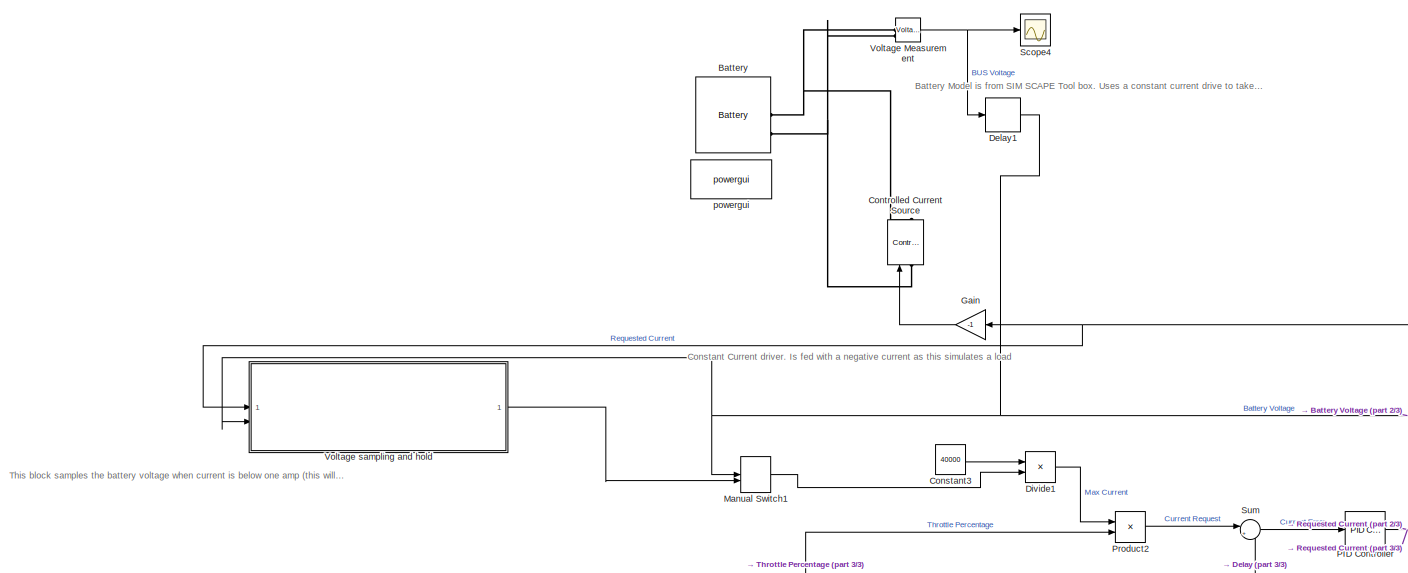
[diagram: root canvas - part 1/3, full width, middle band]
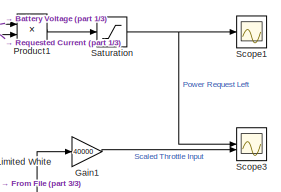
[diagram: root canvas - part 2/3, bottom right region]
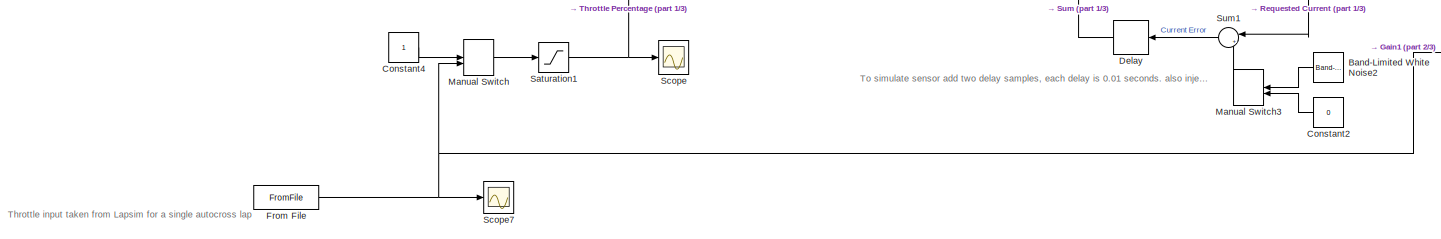
[diagram: root canvas - part 3/3, full width, bottom band]
MODEL slx_4801fc5ce062
KIND model
CONFIG AbsTol = auto
CONFIG EnableMultiTasking = off
CONFIG FixedStep = auto
CONFIG MaxStep = auto
CONFIG MinStep = auto
CONFIG RelTol = 1e-3
CONFIG SampleTimeConstraint = Unconstrained
CONFIG SolverName = VariableStepAuto
CONFIG StartTime = 0.0
CONFIG StopTime = 97.91
BLOCK [Reference] Band-Limited White Noise2  REF=simulink/Sources/Band-Limited
White Noise
  SourceBlock = simulink/Sources/Band-Limited\nWhite Noise
  SourceType = Band-Limited White Noise.
BLOCK [Reference] Battery  REF=spsBatteryLib/Battery
  LibrarySourceBlock = sps_lib/Sources/Battery
  SourceBlock = spsBatteryLib/Battery
  SourceType = Battery
BLOCK [Constant] Constant2
  Value = 0
BLOCK [Constant] Constant3
  Value = 40000
BLOCK [Constant] Constant4
BLOCK [Reference] Controlled Current Source  REF=spsControlledCurrentSourceLib/Controlled Current Source
  LibrarySourceBlock = sps_lib/Sources/Controlled Current Source
  SourceBlock = spsControlledCurrentSourceLib/Controlled Current Source
  SourceType = Controlled Current Source
BLOCK [Delay] Delay
  InputPortMap = u0
BLOCK [Delay] Delay1
  DelayLength = 1
  InitialCondition = 600
  InputPortMap = u0
BLOCK [Product] Divide1
  Inputs = */
BLOCK [FromFile] From File
  FileName = data.mat
  SampleTime = 0
BLOCK [Gain] Gain
  Gain = -1
BLOCK [Gain] Gain1
  Gain = 40000
BLOCK [ManualSwitch] Manual Switch
  CurrentSetting = 0
BLOCK [ManualSwitch] Manual Switch1
  CurrentSetting = 0
BLOCK [ManualSwitch] Manual Switch3
BLOCK [Reference] PID Controller  REF=slpidlib/PID Controller
  LibrarySourceBlock = simulink/Continuous/PID Controller
  SourceBlock = slpidlib/PID Controller
  SourceType = PID 1dof
BLOCK [Product] Product1
BLOCK [Product] Product2
BLOCK [Saturate] Saturation
  LowerLimit = 0
  UpperLimit = inf
BLOCK [Saturate] Saturation1
  LowerLimit = 0
  UpperLimit = inf
BLOCK [Scope] Scope
  Floating = off
  NumInputPorts = 1
  ScopeSpecificationString = Simulink.scopes.TimeScopeBlockCfg('CurrentConfiguration', extmgr.ConfigurationSet(extmgr.Configuration('Core','General UI',true),extmgr.Configuration('Core','Source UI',true),extmgr.Configuration('Sources','WiredSimulink',true),extmgr.Configuration('Visuals','Time Domain',true,'SerializedDisplays',{struct('MinYLimReal','-0.12499','MaxYLimReal','1.12491','YLabelReal','','MinYLimMag','0.00000','MaxY...<+1496ch>
BLOCK [Scope] Scope1
  Floating = off
  NumInputPorts = 1
  ScopeSpecificationString = Simulink.scopes.TimeScopeBlockCfg('CurrentConfiguration', extmgr.ConfigurationSet(extmgr.Configuration('Core','General UI',true),extmgr.Configuration('Core','Source UI',true),extmgr.Configuration('Sources','WiredSimulink',true,'DataLoggingVariableName','ScopeData1'),extmgr.Configuration('Visuals','Time Domain',true,'SerializedDisplays',{struct('MinYLimReal','-5106.65646','MaxYLimReal','45959.90815...<+1571ch>
BLOCK [Scope] Scope3
  Floating = off
  NumInputPorts = 2
  ScopeSpecificationString = Simulink.scopes.TimeScopeBlockCfg('CurrentConfiguration', extmgr.ConfigurationSet(extmgr.Configuration('Core','General UI',true),extmgr.Configuration('Core','Source UI',true),extmgr.Configuration('Sources','WiredSimulink',true,'DataLoggingVariableName','ScopeData3'),extmgr.Configuration('Visuals','Time Domain',true,'SerializedDisplays',{struct('MinYLimReal','-1117.0811','MaxYLimReal','42138.31491'...<+1591ch>
BLOCK [Scope] Scope4
  Floating = off
  NumInputPorts = 1
  ScopeSpecificationString = Simulink.scopes.TimeScopeBlockCfg('CurrentConfiguration', extmgr.ConfigurationSet(extmgr.Configuration('Core','General UI',true),extmgr.Configuration('Core','Source UI',true),extmgr.Configuration('Sources','WiredSimulink',true,'DataLoggingVariableName','ScopeData1'),extmgr.Configuration('Visuals','Time Domain',true,'SerializedDisplays',{struct('MinYLimReal','593.71212','MaxYLimReal','595.79771','Y...<+1506ch>
BLOCK [Scope] Scope7
  Floating = off
  NumInputPorts = 1
  ScopeSpecificationString = Simulink.scopes.TimeScopeBlockCfg('CurrentConfiguration', extmgr.ConfigurationSet(extmgr.Configuration('Core','General UI',true),extmgr.Configuration('Core','Source UI',true),extmgr.Configuration('Sources','WiredSimulink',true,'DataLoggingVariableName','ScopeData1'),extmgr.Configuration('Visuals','Time Domain',true,'SerializedDisplays',{struct('MinYLimReal','-0.125','MaxYLimReal','1.125','YLabelRe...<+1445ch>
BLOCK [Sum] Sum
  Inputs = |+-
BLOCK [Sum] Sum1
  Inputs = |++
BLOCK [Reference] Voltage Measurement  REF=spsVoltageMeasurementLib/Voltage Measurement
  LibrarySourceBlock = sps_lib/Sensors and Measurements/Voltage Measurement
  SourceBlock = spsVoltageMeasurementLib/Voltage Measurement
  SourceType = Voltage Measurement
  UserDataPersistent = on
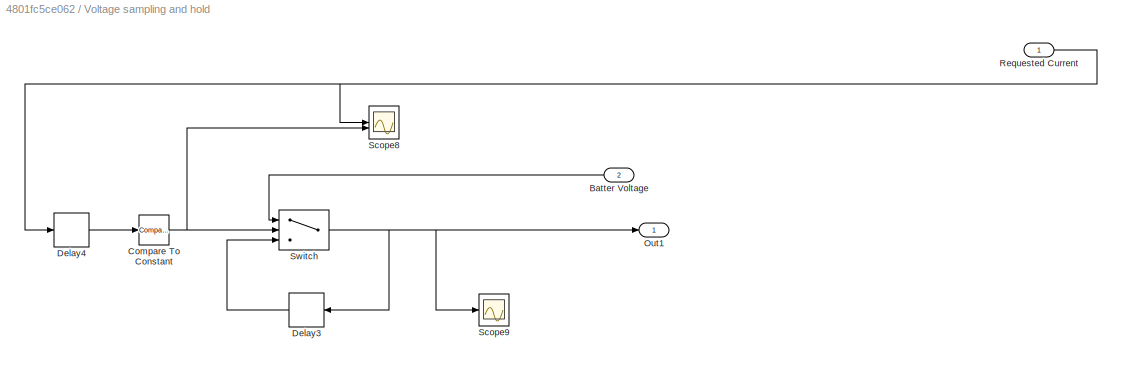
BLOCK [SubSystem] Voltage sampling  and hold
BLOCK [Inport] Voltage sampling  and hold/Batter Voltage
  Port = 2
BLOCK [Reference] Voltage sampling  and hold/Compare To Constant  REF=simulink/Logic and Bit
Operations/Compare
To Constant
  SourceBlock = simulink/Logic and Bit\nOperations/Compare\nTo Constant
  SourceType = Compare To Constant
BLOCK [Delay] Voltage sampling  and hold/Delay3
  DelayLength = 1
  InitialCondition = 500
  InputPortMap = u0
BLOCK [Delay] Voltage sampling  and hold/Delay4
  DelayLength = 1
  InitialCondition = 0
  InputPortMap = u0
BLOCK [Outport] Voltage sampling  and hold/Out1
BLOCK [Inport] Voltage sampling  and hold/Requested Current
BLOCK [Scope] Voltage sampling  and hold/Scope8
  Floating = off
  NumInputPorts = 2
  ScopeSpecificationString = Simulink.scopes.TimeScopeBlockCfg('CurrentConfiguration', extmgr.ConfigurationSet(extmgr.Configuration('Core','General UI',true),extmgr.Configuration('Core','Source UI',true),extmgr.Configuration('Sources','WiredSimulink',true,'DataLoggingVariableName','ScopeData1'),extmgr.Configuration('Visuals','Time Domain',true,'SerializedDisplays',{struct('MinYLimReal','-10.24431','MaxYLimReal','77.5328','YLa...<+1489ch>
BLOCK [Scope] Voltage sampling  and hold/Scope9
  Floating = off
  NumInputPorts = 1
  ScopeSpecificationString = Simulink.scopes.TimeScopeBlockCfg('CurrentConfiguration', extmgr.ConfigurationSet(extmgr.Configuration('Core','General UI',true),extmgr.Configuration('Core','Source UI',true),extmgr.Configuration('Sources','WiredSimulink',true,'DataLoggingVariableName','ScopeData2'),extmgr.Configuration('Visuals','Time Domain',true,'SerializedDisplays',{struct('MinYLimReal','593.52019','MaxYLimReal','600.71998','Y...<+1468ch>
BLOCK [Switch] Voltage sampling  and hold/Switch
  Criteria = u2 > Threshold
  InputSameDT = off
  SaturateOnIntegerOverflow = off
BLOCK [Reference] powergui  REF=spspowerguiLib/powergui
  LibrarySourceBlock = sps_lib/powergui
  Priority = 1
  SourceBlock = spspowerguiLib/powergui
  SourceType = PSB option menu block
ANNOTATION (root): Battery Model is from SIM SCAPE Tool box. Uses a constant current drive to take the current request from controller and apply load to the battery. Delay block is nescarry so as to have an intial value for the model to use in calculations.
ANNOTATION (root): This block samples the battery voltage when current is below one amp (this will account for any noise in the current sense). It then holeds this voltage for calculating the max current, This was done to limit noise in calculation caused by flactuating voltage.
ANNOTATION (root): Throttle input taken from Lapsim for a single autocross lap
ANNOTATION (root): To simulate sensor add two delay samples, each delay is 0.01 seconds. also inject white noise.
ANNOTATION (root): Constant Current driver. Is fed with a negative current as this simulates a load
LINE Band-Limited White Noise2:1 -> Manual Switch3:1
LINE Constant2:1 -> Manual Switch3:2
LINE Constant3:1 -> Divide1:1
LINE Constant4:1 -> Manual Switch:1
NET Delay1:1 -> Manual Switch1:1, Product1:1, Voltage sampling  and hold:2
LINE Delay:1 -> Sum:2
LINE Divide1:1 -> Product2:1
NET From File:1 -> Gain1:1, Manual Switch:2, Scope7:1
LINE Gain1:1 -> Scope3:2
LINE Gain:1 -> Controlled Current Source:1
LINE Manual Switch1:1 -> Divide1:2
LINE Manual Switch3:1 -> Sum1:2
LINE Manual Switch:1 -> Saturation1:1
NET PID Controller:1 -> Gain:1, Product1:2, Sum1:1, Voltage sampling  and hold:1
LINE Product1:1 -> Saturation:1
LINE Product2:1 -> Sum:1
NET Saturation1:1 -> Product2:2, Scope:1
NET Saturation:1 -> Scope1:1, Scope3:1
LINE Sum1:1 -> Delay:1
LINE Sum:1 -> PID Controller:1
NET Voltage Measurement:1 -> Delay1:1, Scope4:1
LINE Voltage sampling  and hold/Batter Voltage:1 -> Voltage sampling  and hold/Switch:1
NET Voltage sampling  and hold/Compare To Constant:1 -> Voltage sampling  and hold/Scope8:2, Voltage sampling  and hold/Switch:2
LINE Voltage sampling  and hold/Delay3:1 -> Voltage sampling  and hold/Switch:3
LINE Voltage sampling  and hold/Delay4:1 -> Voltage sampling  and hold/Compare To Constant:1
NET Voltage sampling  and hold/Requested Current:1 -> Voltage sampling  and hold/Delay4:1, Voltage sampling  and hold/Scope8:1
NET Voltage sampling  and hold/Switch:1 -> Voltage sampling  and hold/Delay3:1, Voltage sampling  and hold/Out1:1, Voltage sampling  and hold/Scope9:1
LINE Voltage sampling  and hold:1 -> Manual Switch1:2
PNET net1: Battery:LConn1 -- Controlled Current Source:RConn1 -- Voltage Measurement:LConn1
PNET net2: Battery:LConn2 -- Controlled Current Source:LConn1 -- Voltage Measurement:LConn2
note: NET lines group one-source signal fan-out (src -> all destinations, sorted); 1:1 wires keep LINE; PNET lines group multi-terminal physical nets as a canonical sorted terminal list (undirected conserving connections); 2-terminal nets keep the pairwise PLINE form
